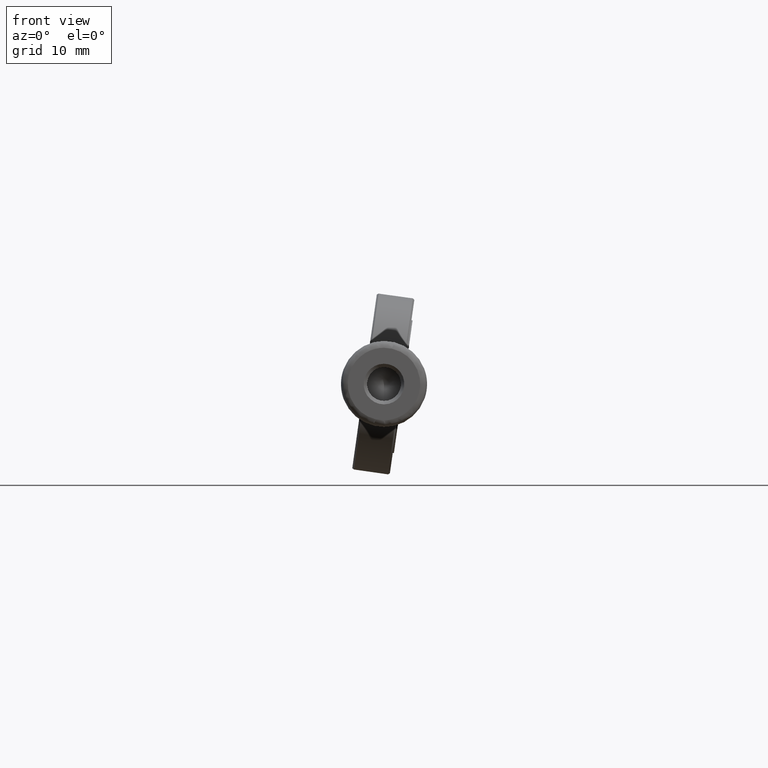
[diagram: clean part render]
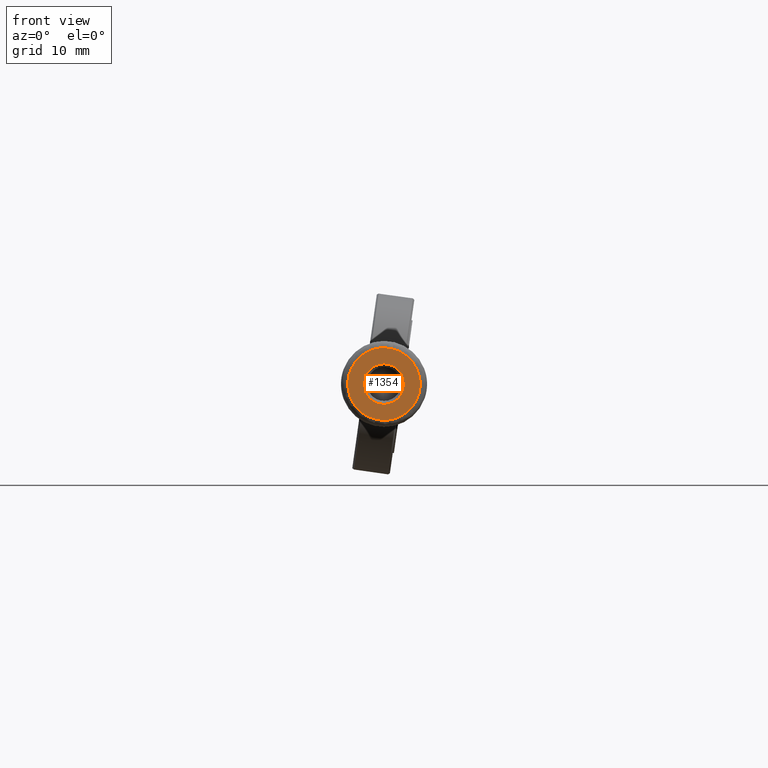
[diagram: same view with one face highlighted and labeled with its STEP entity id]
A machine part, front view. The second image highlights one B-rep face of the part: STEP entity #1354.
In plain terms, the highlighted planar face has unit normal (0, 1, 0).
Its self-contained STEP definition (entity closure, byte-faithful):
#79 = VERTEX_POINT ( 'NONE', #1898 ) ;
#165 = FACE_BOUND ( 'NONE', #452, .T. ) ;
#219 = ORIENTED_EDGE ( 'NONE', *, *, #991, .F. ) ;
#260 = EDGE_CURVE ( 'NONE', #1176, #79, #1609, .T. ) ;
#322 = CARTESIAN_POINT ( 'NONE',  ( -39.04987127643543232, -37.90418376103562537, 23.37630606107413911 ) ) ;
#378 = DIRECTION ( 'NONE',  ( 0.000000000000000000, 0.000000000000000000, -1.000000000000000000 ) ) ;
#390 = CARTESIAN_POINT ( 'NONE',  ( -49.74987127643542806, -37.90418376103562537, 12.67630606107413627 ) ) ;
#447 = EDGE_LOOP ( 'NONE', ( #1199, #219 ) ) ;
#452 = EDGE_LOOP ( 'NONE', ( #799 ) ) ;
#618 = DIRECTION ( 'NONE',  ( 0.000000000000000000, 1.000000000000000000, 0.000000000000000000 ) ) ;
#624 = CIRCLE ( 'NONE', #1705, 2.999999999985902832 ) ;
#646 = FACE_OUTER_BOUND ( 'NONE', #447, .T. ) ;
#655 = CARTESIAN_POINT ( 'NONE',  ( -49.74987127643542806, -37.90418376103562537, 12.67630606107413627 ) ) ;
#766 = PLANE ( 'NONE',  #1927 ) ;
#799 = ORIENTED_EDGE ( 'NONE', *, *, #1509, .F. ) ;
#815 = DIRECTION ( 'NONE',  ( 0.000000000000000000, -1.000000000000000000, 0.000000000000000000 ) ) ;
#838 = CARTESIAN_POINT ( 'NONE',  ( -49.74987127643542806, -37.90418376111520615, 15.02630606108823486 ) ) ;
#858 = CARTESIAN_POINT ( 'NONE',  ( -49.74987127643542806, -37.90418376103562537, 23.37630606107413911 ) ) ;
#926 = CARTESIAN_POINT ( 'NONE',  ( -49.74987127643542806, -37.90418376103562537, 18.02630606107413769 ) ) ;
#936 =( BOUNDED_CURVE ( )  B_SPLINE_CURVE ( 3, ( #390, #1145, #1277, #858 ),
 .UNSPECIFIED., .F., .T. ) 
 B_SPLINE_CURVE_WITH_KNOTS ( ( 4, 4 ),
 ( 0.000000000000000000, 1.000000000000000000 ),
 .UNSPECIFIED. ) 
 CURVE ( )  GEOMETRIC_REPRESENTATION_ITEM ( )  RATIONAL_B_SPLINE_CURVE ( ( 1.000000000000000000, 0.3333333333333333703, 0.3333333333333333703, 1.000000000000000000 ) ) 
 REPRESENTATION_ITEM ( '' )  );
#991 = EDGE_CURVE ( 'NONE', #79, #1176, #936, .T. ) ;
#1034 = CARTESIAN_POINT ( 'NONE',  ( -49.74987127643542806, -37.90418376103562537, 23.37630606107413911 ) ) ;
#1077 = CARTESIAN_POINT ( 'NONE',  ( -39.04987127643543232, -37.90418376103562537, 12.67630606107413982 ) ) ;
#1127 = VERTEX_POINT ( 'NONE', #838 ) ;
#1145 = CARTESIAN_POINT ( 'NONE',  ( -60.44987127643543801, -37.90418376103562537, 12.67630606107413449 ) ) ;
#1176 = VERTEX_POINT ( 'NONE', #1034 ) ;
#1199 = ORIENTED_EDGE ( 'NONE', *, *, #260, .F. ) ;
#1222 = DIRECTION ( 'NONE',  ( 0.000000000000000000, -0.000000000000000000, 1.000000000000000000 ) ) ;
#1265 = CARTESIAN_POINT ( 'NONE',  ( -49.74987127643542806, -37.90418376103562537, 23.37630606107413911 ) ) ;
#1277 = CARTESIAN_POINT ( 'NONE',  ( -60.44987127643543801, -37.90418376103562537, 23.37630606107413911 ) ) ;
#1354 = ADVANCED_FACE ( 'NONE', ( #165, #646 ), #766, .F. ) ;
#1509 = EDGE_CURVE ( 'NONE', #1127, #1127, #624, .T. ) ;
#1579 = CARTESIAN_POINT ( 'NONE',  ( -49.74987127643542806, -37.90418376111520615, 18.02630606107413769 ) ) ;
#1609 =( BOUNDED_CURVE ( )  B_SPLINE_CURVE ( 3, ( #1265, #322, #1077, #655 ),
 .UNSPECIFIED., .F., .F. ) 
 B_SPLINE_CURVE_WITH_KNOTS ( ( 4, 4 ),
 ( 0.000000000000000000, 1.000000000000000000 ),
 .UNSPECIFIED. ) 
 CURVE ( )  GEOMETRIC_REPRESENTATION_ITEM ( )  RATIONAL_B_SPLINE_CURVE ( ( 1.000000000000000000, 0.3333333333333333703, 0.3333333333333333703, 1.000000000000000000 ) ) 
 REPRESENTATION_ITEM ( '' )  );
#1705 = AXIS2_PLACEMENT_3D ( 'NONE', #1579, #815, #378 ) ;
#1898 = CARTESIAN_POINT ( 'NONE',  ( -49.74987127643542806, -37.90418376103562537, 12.67630606107413627 ) ) ;
#1927 = AXIS2_PLACEMENT_3D ( 'NONE', #926, #618, #1222 ) ;